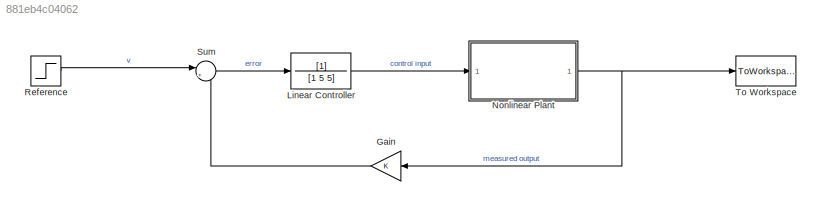
MODEL slx_881eb4c04062
KIND model
CONFIG AbsTol = auto
CONFIG FixedStep = auto
CONFIG MaxStep = 0.01
CONFIG MinStep = auto
CONFIG RelTol = 1e-4
CONFIG SampleTimeConstraint = Unconstrained
CONFIG Solver = VariableStepAuto
CONFIG SolverMode = Auto
CONFIG SolverName = VariableStepAuto
CONFIG StartTime = 0.0
CONFIG StopTime = 20
BLOCK [Gain] Gain
  OutDataTypeStr = Inherit: Inherit via internal rule
  ParamDataTypeStr = Inherit: Inherit via internal rule
  SaturateOnIntegerOverflow = off
BLOCK [TransferFcn] Linear Controller
  Denominator = [1 5 5]
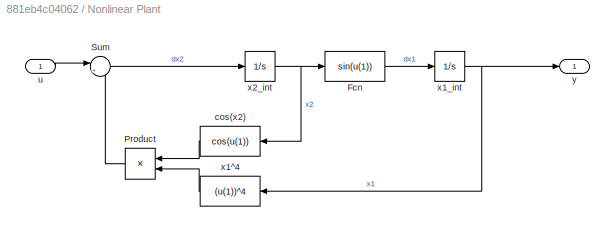
BLOCK [SubSystem] Nonlinear Plant
  Ports = [1, 1]
  RequestExecContextInheritance = off
  Variant = off
BLOCK [Fcn] Nonlinear Plant/Fcn
  Expr = sin(u(1))
BLOCK [Product] Nonlinear Plant/Product
  InputSameDT = off
  OutDataTypeStr = Inherit: Inherit via internal rule
  Ports = [2, 1]
  RndMeth = Floor
  SaturateOnIntegerOverflow = off
BLOCK [Sum] Nonlinear Plant/Sum
  IconShape = round
  InputSameDT = off
  Inputs = |++
  OutDataTypeStr = Inherit: Inherit via internal rule
  Ports = [2, 1]
  SaturateOnIntegerOverflow = off
BLOCK [Fcn] Nonlinear Plant/cos(x2)
  Expr = cos(u(1))
BLOCK [Inport] Nonlinear Plant/u
  IconDisplay = Port number
BLOCK [Fcn] Nonlinear Plant/x1^4
  Expr = (u(1))^4
BLOCK [Integrator] Nonlinear Plant/x1_int
  Ports = [1, 1]
BLOCK [Integrator] Nonlinear Plant/x2_int
  Ports = [1, 1]
BLOCK [Outport] Nonlinear Plant/y
  IconDisplay = Port number
BLOCK [Step] Reference
  SampleTime = 0
BLOCK [Sum] Sum
  IconShape = round
  InputSameDT = off
  Inputs = |+-
  OutDataTypeStr = Inherit: Inherit via internal rule
  Ports = [2, 1]
  SaturateOnIntegerOverflow = off
BLOCK [ToWorkspace] To Workspace
  FixptAsFi = on
  MaxDataPoints = inf
  Ports = [1]
  SampleTime = -1
  Save2DSignal = 3-D array (concatenate along third dimension)
  SaveFormat = Timeseries
  VariableName = y
LINE Gain:1 -> Sum:2
LINE Linear Controller:1 -> Nonlinear Plant:1
LINE Nonlinear Plant/Fcn:1 -> Nonlinear Plant/x1_int:1
LINE Nonlinear Plant/Product:1 -> Nonlinear Plant/Sum:2
LINE Nonlinear Plant/Sum:1 -> Nonlinear Plant/x2_int:1
LINE Nonlinear Plant/cos(x2):1 -> Nonlinear Plant/Product:1
LINE Nonlinear Plant/u:1 -> Nonlinear Plant/Sum:1
LINE Nonlinear Plant/x1^4:1 -> Nonlinear Plant/Product:2
NET Nonlinear Plant/x1_int:1 -> Nonlinear Plant/x1^4:1, Nonlinear Plant/y:1
NET Nonlinear Plant/x2_int:1 -> Nonlinear Plant/Fcn:1, Nonlinear Plant/cos(x2):1
NET Nonlinear Plant:1 -> Gain:1, To Workspace:1
LINE Reference:1 -> Sum:1
LINE Sum:1 -> Linear Controller:1
note: NET lines group one-source signal fan-out (src -> all destinations, sorted); 1:1 wires keep LINE
